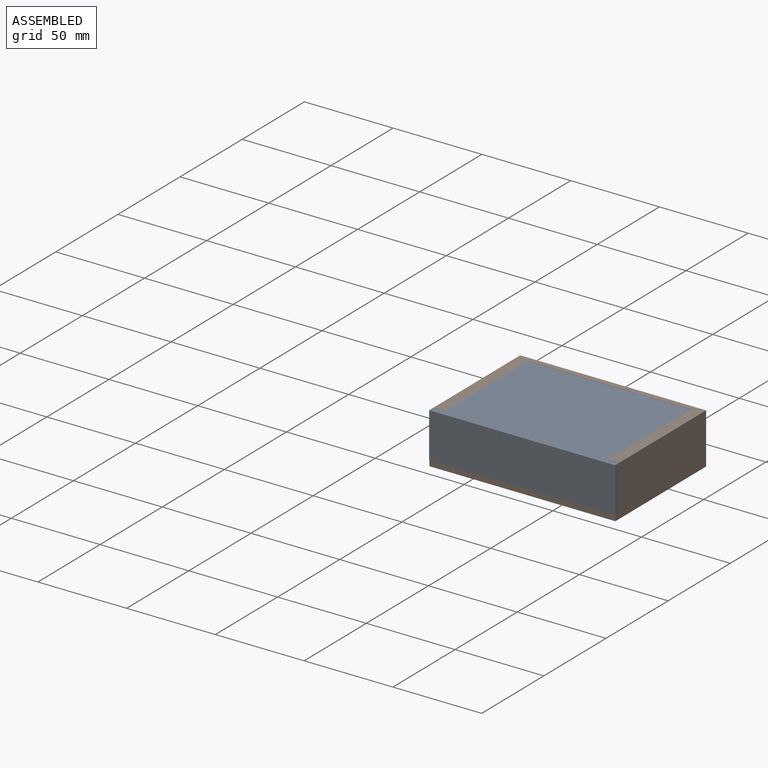
[diagram: assembled view]
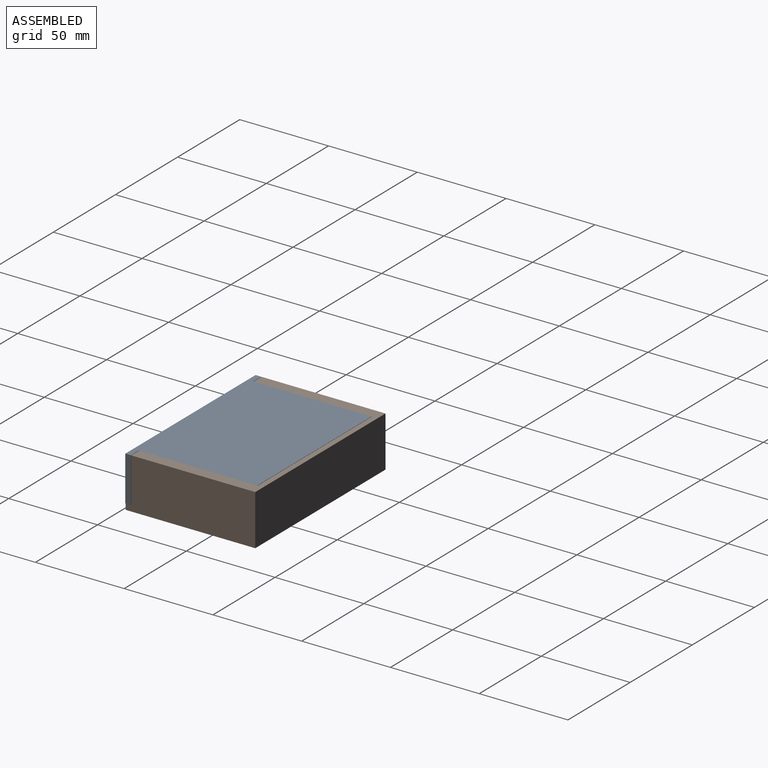
[diagram: assembled view, second angle]
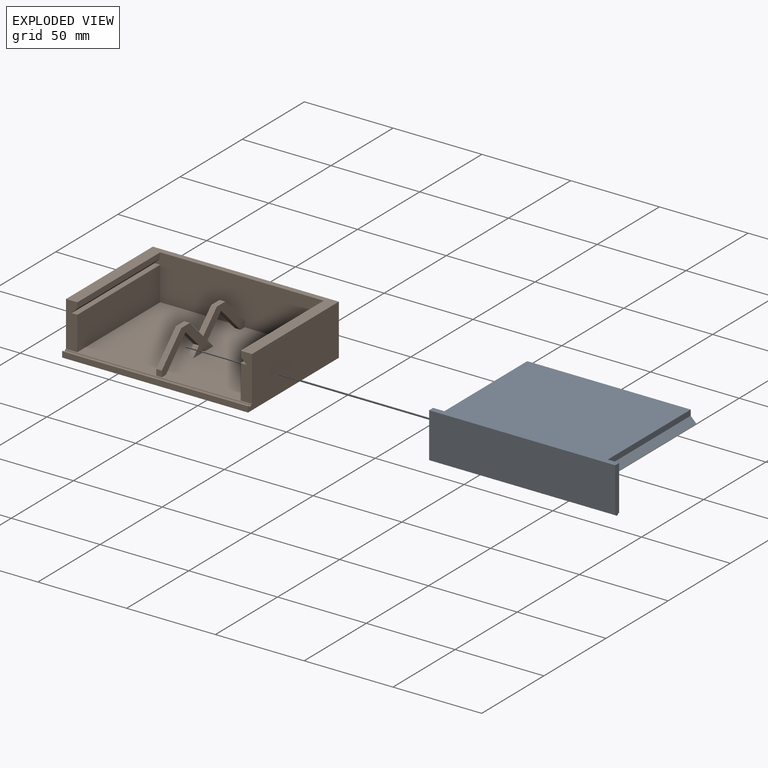
[diagram: exploded view]
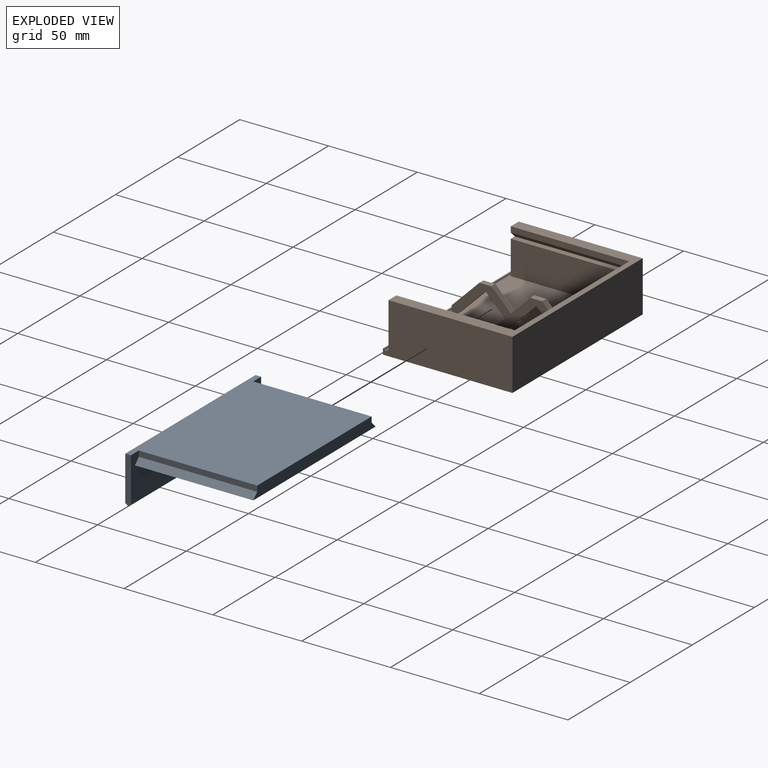
[diagram: exploded view, second angle]
ASSEMBLY  parts=2 mates=2
PART A: 14 faces, bbox 104.8x69.9x26.2 mm
  f0: plane 104.78x25.4mm, normal (0,1,0), area 2066.5mm2, adj f2,f3,f6,f7,f8,f9,f10,f11
  f1: plane 104.78x25.4mm, normal (0,-1,0), area 2661.3mm2, adj f3,f4,f11,f12
  f2: plane 104.78x0.79mm, normal (0,0,-1), area 82.5mm2, adj f0,f5,f11,f12
  f3: plane 104.78x69.85mm, normal (0,0,1), area 6471.8mm2, adj f0,f1,f7,f8,f11,f12,f13
  f4: plane 104.78x0.79mm, normal (0,0,-1), area 82.5mm2, adj f1,f5,f11,f12
  f5: cylinder r=0.8mm len=104.78mm, axis (-1,0,0), area 263.3mm2, adj f2,f4,f11,f12
  f6: plane 98.43x66.68mm, normal (0,0,-1), area 6562.5mm2, adj f0,f9,f10,f13
  f7: plane 66.68x3.18mm, normal (1,0,0), area 211.7mm2, adj f0,f3,f10,f13
  f8: plane 66.68x3.18mm, normal (-1,0,0), area 211.7mm2, adj f0,f3,f9,f13
  f9: plane 66.68x3.18mm, normal (-0.71,0,0.71), area 299.4mm2, adj f0,f6,f8,f13
  f10: plane 66.68x3.18mm, normal (0.71,0,0.71), area 299.4mm2, adj f0,f6,f7,f13
  f11: plane 26.2x3.18mm, normal (-1,0,0), area 81.7mm2, adj f0,f1,f2,f3,f4,f5
  f12: plane 26.2x3.18mm, normal (1,0,0), area 81.7mm2, adj f0,f1,f2,f3,f4,f5
  f13: plane 98.43x6.35mm, normal (0,1,0), area 594.8mm2, adj f3,f6,f7,f8,f9,f10
PART B: 37 faces, bbox 104.8x73x28.6 mm
  f0: plane 104.78x0.79mm, normal (0,0,1), area 82.5mm2, adj f30,f31,f35,f36
  f1: plane 25.4x6.35mm, normal (0,-1,0), area 156.2mm2, adj f4,f5,f7,f14,f16,f30,f33
  f2: plane 3.37x3.18mm, normal (0,-1,0), area 10.7mm2, adj f10,f11,f16,f26
  f3: plane 104.78x73.03mm, normal (0,0,-1), area 7651.2mm2, adj f12,f30,f31,f35
  f4: plane 66.68x3.18mm, normal (0,0,1), area 211.7mm2, adj f1,f13,f14,f33
  f5: plane 66.68x3.18mm, normal (1,0,0), area 211.7mm2, adj f1,f7,f13,f33
  f6: plane 66.68x3.18mm, normal (-1,0,0), area 211.7mm2, adj f7,f13,f32,f34
  f7: plane 104.78x69.85mm, normal (0,0,1), area 1179.4mm2, adj f1,f5,f6,f12,f13,f30,f31,f34
  f8: plane 6.74x3.18mm, normal (0,0,1), area 21.4mm2, adj f10,f11,f25,f26
  f9: plane 6.74x3.18mm, normal (0,0,1), area 21.4mm2, adj f10,f11,f23,f24
  f10: plane 66.68x19.05mm, normal (-1,0,0), area 456.5mm2, adj f2,f8,f9,f13,f16,f17,f18,f19
  f11: plane 66.68x19.05mm, normal (1,0,0), area 456.5mm2, adj f2,f8,f9,f13,f16,f17,f18,f19
  f12: plane 104.78x28.58mm, normal (0,1,0), area 2993.9mm2, adj f3,f7,f30,f31
  f13: plane 98.43x25.4mm, normal (0,-1,0), area 2338.1mm2, adj f4,f5,f6,f7,f10,f11,f14,f15
  f14: plane 66.68x19.05mm, normal (1,0,0), area 1270.2mm2, adj f1,f4,f13,f16
  f15: plane 66.68x19.05mm, normal (-1,0,0), area 1270.2mm2, adj f13,f16,f29,f34
  f16: plane 104.78x67.46mm, normal (0,0,1), area 6157.5mm2, adj f1,f2,f10,f11,f13,f14,f15,f17
  f17: plane 15.68x15.68mm, normal (0,-0.71,-0.71), area 70.4mm2, adj f10,f11,f16,f19
  f18: plane 4.76x4.76mm, normal (0,0.71,0.71), area 21.4mm2, adj f10,f11,f16,f19
  f19: plane 10.92x10.92mm, normal (0,0.71,-0.71), area 49mm2, adj f10,f11,f17,f18
  f20: plane 15.68x15.68mm, normal (0,0.71,-0.71), area 70.4mm2, adj f10,f11,f16,f21
  f21: plane 10.92x10.92mm, normal (0,-0.71,-0.71), area 49mm2, adj f10,f11,f20,f22
  f22: plane 4.76x4.76mm, normal (0,-0.71,0.71), area 21.4mm2, adj f10,f11,f16,f21
  f23: plane 15.68x15.68mm, normal (0,0.71,0.71), area 70.4mm2, adj f9,f10,f11,f13
  f24: plane 10.92x10.92mm, normal (0,-0.71,0.71), area 49mm2, adj f9,f10,f11,f25
  f25: plane 10.92x10.92mm, normal (0,0.71,0.71), area 49mm2, adj f8,f10,f11,f24
  f26: plane 15.68x15.68mm, normal (0,-0.71,0.71), area 70.4mm2, adj f2,f8,f10,f11
  f27: plane 3.18x1.4mm, normal (0,0.71,-0.71), area 6.3mm2, adj f10,f11,f16,f28
  f28: plane 3.18x1.4mm, normal (0,-0.71,-0.71), area 6.3mm2, adj f10,f11,f16,f27
  f29: plane 66.68x3.18mm, normal (0,0,1), area 211.7mm2, adj f13,f15,f32,f34
  f30: plane 73.03x28.58mm, normal (-1,0,0), area 2005mm2, adj f0,f1,f3,f7,f12,f16,f35,f36
  f31: plane 73.03x28.58mm, normal (1,0,0), area 2005mm2, adj f0,f3,f7,f12,f16,f34,f35,f36
  f32: plane 66.68x3.18mm, normal (-0.71,0,-0.71), area 299.4mm2, adj f6,f13,f29,f34
  f33: plane 66.68x3.18mm, normal (0.71,0,-0.71), area 299.4mm2, adj f1,f4,f5,f13
  f34: plane 25.4x6.35mm, normal (0,-1,0), area 156.2mm2, adj f6,f7,f15,f16,f29,f31,f32
  f35: plane 104.78x3.18mm, normal (0,-1,0), area 332.7mm2, adj f0,f3,f30,f31
  f36: cylinder r=0.8mm len=104.78mm, axis (-1,0,0), area 263.3mm2, adj f0,f16,f30,f31
PLACE A t=(-15.74,6.69,39.7)mm
PLACE B t=(-18.92,3.7,17.48)mm fixed
MATE planar A.f8 <-> B.f5  axis (-1,0,0) through (-15.74,40.03,44.46)mm
MATE planar A.f3 <-> B.f7  axis (0,0,1) through (30.29,38.24,46.05)mm
